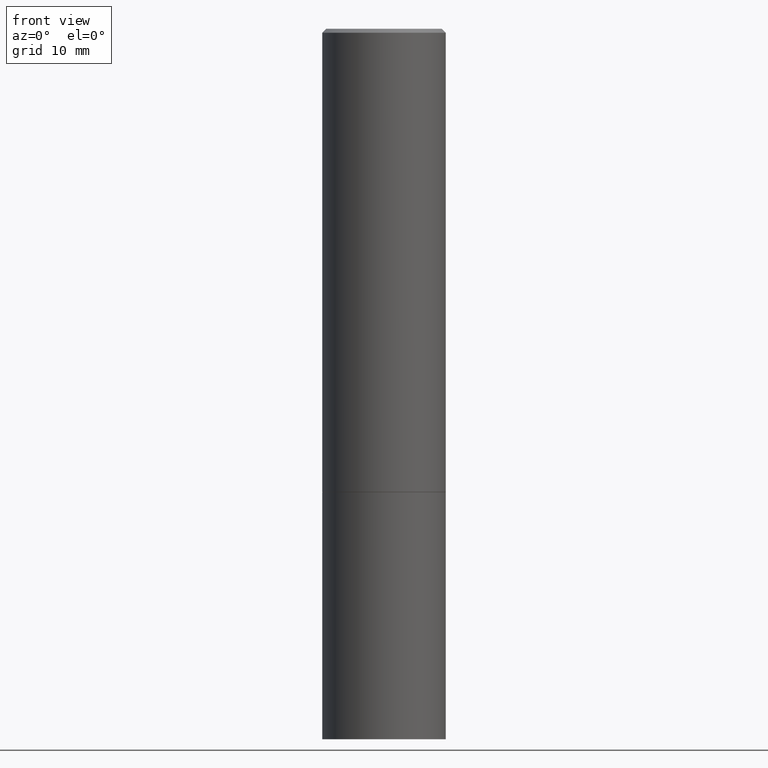
[diagram: clean part render]
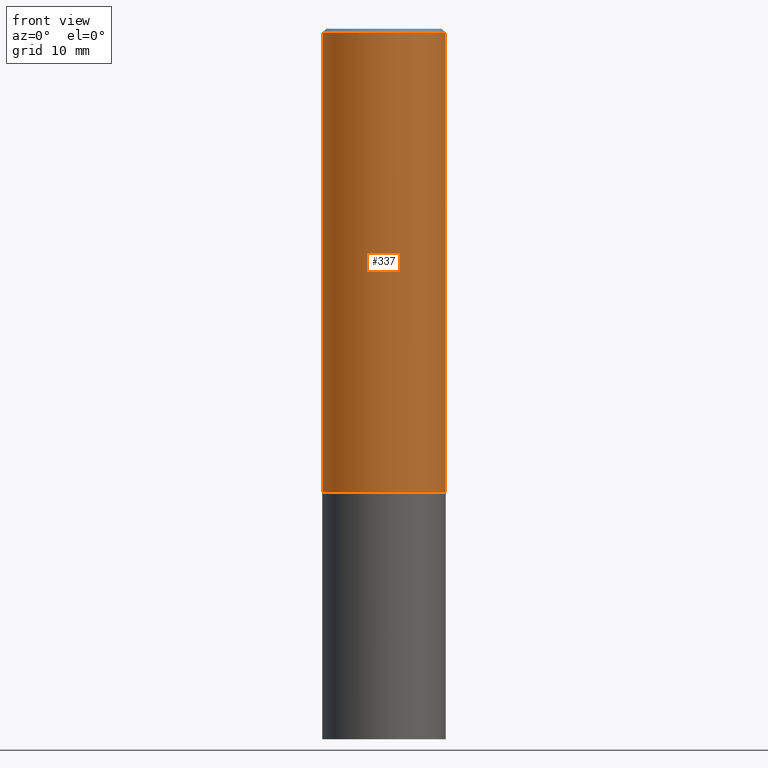
[diagram: same view with one face highlighted and labeled with its STEP entity id]
A machine part, front view. The second image highlights one B-rep face of the part: STEP entity #337.
In plain terms, the highlighted cylindrical surface (partial cylindrical patch) has radius 7.9997 mm, axis along (-0, 0, 1).
Its self-contained STEP definition (entity closure, byte-faithful):
#8 = ORIENTED_EDGE ( 'NONE', *, *, #52, .F. ) ;
#10 = CYLINDRICAL_SURFACE ( 'NONE', #311, 0.3149499999999998967 ) ;
#11 = DIRECTION ( 'NONE',  ( 1.000000000000000000, -6.982962677686266711E-15, 0.000000000000000000 ) ) ;
#21 = VERTEX_POINT ( 'NONE', #267 ) ;
#29 = CIRCLE ( 'NONE', #200, 0.3149500000000000077 ) ;
#52 = EDGE_CURVE ( 'NONE', #256, #132, #214, .T. ) ;
#77 = CARTESIAN_POINT ( 'NONE',  ( 0.000000000000000000, 0.000000000000000000, 0.000000000000000000 ) ) ;
#87 = CARTESIAN_POINT ( 'NONE',  ( 5.774240945164344150E-29, -8.244085737276433464E-15, -2.361199999999999743 ) ) ;
#90 = CARTESIAN_POINT ( 'NONE',  ( 0.3149499999999998967, -2.199284095337288688E-15, 1.535751875536929289E-29 ) ) ;
#94 = VECTOR ( 'NONE', #195, 39.37007874015748143 ) ;
#114 = EDGE_CURVE ( 'NONE', #224, #21, #123, .T. ) ;
#123 = LINE ( 'NONE', #90, #94 ) ;
#132 = VERTEX_POINT ( 'NONE', #326 ) ;
#134 = CARTESIAN_POINT ( 'NONE',  ( 0.3149500000000000077, -1.044336983261372333E-14, -2.361199999999999743 ) ) ;
#144 = CIRCLE ( 'NONE', #331, 0.3149499999999997302 ) ;
#156 = ORIENTED_EDGE ( 'NONE', *, *, #240, .T. ) ;
#173 = CARTESIAN_POINT ( 'NONE',  ( -0.3149500000000000077, -1.919103335750211213E-15, -2.361199999999999743 ) ) ;
#184 = VECTOR ( 'NONE', #324, 39.37007874015748143 ) ;
#187 = CARTESIAN_POINT ( 'NONE',  ( -0.3149499999999998967, 2.237854346276434801E-15, -1.549218606675782116E-29 ) ) ;
#189 = CARTESIAN_POINT ( 'NONE',  ( 4.890937612370290675E-31, -6.982962677686316261E-17, -0.02000000000000007327 ) ) ;
#191 = DIRECTION ( 'NONE',  ( 1.000000000000000000, -6.982962677686265922E-15, 4.876176775795935232E-29 ) ) ;
#195 = DIRECTION ( 'NONE',  ( -2.445468806185136877E-29, 3.491481338843145188E-15, 1.000000000000000000 ) ) ;
#200 = AXIS2_PLACEMENT_3D ( 'NONE', #87, #361, #362 ) ;
#214 = LINE ( 'NONE', #187, #184 ) ;
#217 = EDGE_CURVE ( 'NONE', #132, #21, #144, .T. ) ;
#221 = FACE_OUTER_BOUND ( 'NONE', #317, .T. ) ;
#224 = VERTEX_POINT ( 'NONE', #134 ) ;
#240 = EDGE_CURVE ( 'NONE', #256, #224, #29, .T. ) ;
#247 = ORIENTED_EDGE ( 'NONE', *, *, #114, .T. ) ;
#256 = VERTEX_POINT ( 'NONE', #173 ) ;
#267 = CARTESIAN_POINT ( 'NONE',  ( 0.3149499999999997302, -2.230543471175005478E-15, -0.02000000000000007327 ) ) ;
#268 = DIRECTION ( 'NONE',  ( -2.445468806185136597E-29, 3.491481338843145583E-15, 1.000000000000000000 ) ) ;
#291 = ORIENTED_EDGE ( 'NONE', *, *, #217, .F. ) ;
#311 = AXIS2_PLACEMENT_3D ( 'NONE', #77, #268, #191 ) ;
#317 = EDGE_LOOP ( 'NONE', ( #8, #156, #247, #291 ) ) ;
#320 = DIRECTION ( 'NONE',  ( -2.445468806185136597E-29, 3.491481338843145583E-15, 1.000000000000000000 ) ) ;
#324 = DIRECTION ( 'NONE',  ( -2.445468806185136877E-29, 3.491481338843145188E-15, 1.000000000000000000 ) ) ;
#326 = CARTESIAN_POINT ( 'NONE',  ( -0.3149499999999997302, 2.129454468560424601E-15, -0.02000000000000007327 ) ) ;
#331 = AXIS2_PLACEMENT_3D ( 'NONE', #189, #320, #11 ) ;
#337 = ADVANCED_FACE ( 'NONE', ( #221 ), #10, .T. ) ;
#361 = DIRECTION ( 'NONE',  ( -2.445468806185136597E-29, 3.491481338843145583E-15, 1.000000000000000000 ) ) ;
#362 = DIRECTION ( 'NONE',  ( 1.000000000000000000, -6.982962677686263555E-15, 0.000000000000000000 ) ) ;